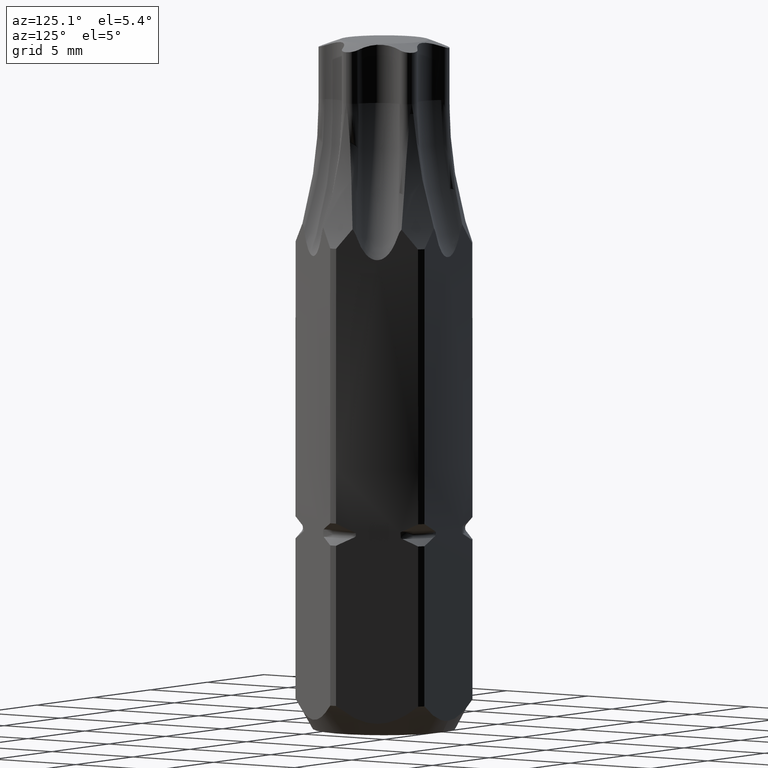
[diagram: clean part render]
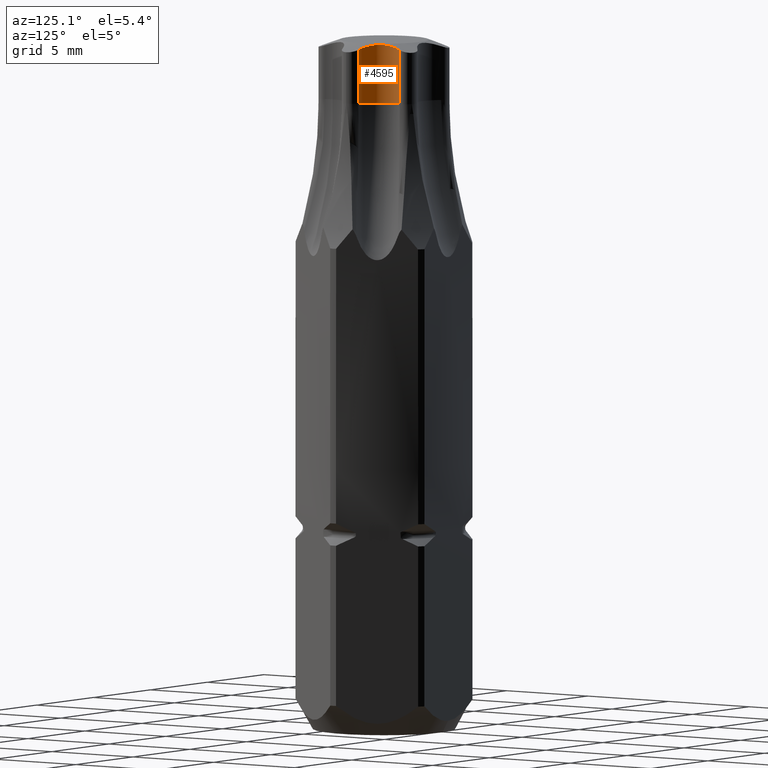
[diagram: same view with one face highlighted and labeled with its STEP entity id]
A machine part, auxiliary view. The second image highlights one B-rep face of the part: STEP entity #4595.
In plain terms, the highlighted cylindrical surface (edge-blend (fillet) strip) has radius 1.47 mm, axis along (0, 0, -1).
Its self-contained STEP definition (entity closure, byte-faithful):
#2579=DIRECTION('',(0.E0,0.E0,-1.E0));
#2580=VECTOR('',#2579,2.730601962634E0);
#2581=CARTESIAN_POINT('',(1.902547287539E0,2.302601828869E0,3.473060196263E1));
#2582=LINE('',#2581,#2580);
#2622=CARTESIAN_POINT('',(3.321207423513E0,1.9175E0,3.2E1));
#2623=DIRECTION('',(0.E0,0.E0,-1.E0));
#2624=DIRECTION('',(-2.556612932940E-1,-9.667664160030E-1,0.E0));
#2625=AXIS2_PLACEMENT_3D('',#2622,#2623,#2624);
#2686=CARTESIAN_POINT('',(2.945385322371E0,4.963533684756E-1,3.473060196263E1));
#2687=CARTESIAN_POINT('',(2.830801604491E0,5.266550225449E-1,3.476989442548E1));
#2688=CARTESIAN_POINT('',(2.614147495545E0,6.134940991285E-1,3.484160660030E1));
#2689=CARTESIAN_POINT('',(2.336924284507E0,8.090693275862E-1,3.491971703679E1));
#2690=CARTESIAN_POINT('',(2.119949651926E0,1.050449161239E0,3.495921769548E1));
#2691=CARTESIAN_POINT('',(1.962956715526E0,1.326473480975E0,3.495798141464E1));
#2692=CARTESIAN_POINT('',(1.867483416166E0,1.630574349866E0,3.491734600614E1));
#2693=CARTESIAN_POINT('',(1.838951646457E0,1.960231680545E0,3.484059962333E1));
#2694=CARTESIAN_POINT('',(1.871706653468E0,2.188989337716E0,3.476962966182E1));
#2695=CARTESIAN_POINT('',(1.902547287539E0,2.302601828869E0,3.473060196263E1));
#2700=DIRECTION('',(0.E0,0.E0,-1.E0));
#2701=VECTOR('',#2700,2.730601962634E0);
#2702=CARTESIAN_POINT('',(2.945385322371E0,4.963533684756E-1,3.473060196263E1));
#2703=LINE('',#2702,#2701);
#2889=CARTESIAN_POINT('',(2.945385322371E0,4.963533684756E-1,3.2E1));
#2890=CARTESIAN_POINT('',(1.902547287539E0,2.302601828869E0,3.2E1));
#2891=VERTEX_POINT('',#2889);
#2892=VERTEX_POINT('',#2890);
#2953=VERTEX_POINT('',#2686);
#2954=VERTEX_POINT('',#2695);
#4584=CARTESIAN_POINT('',(3.321207423513E0,1.9175E0,3.5E1));
#4585=DIRECTION('',(0.E0,0.E0,-1.E0));
#4586=DIRECTION('',(8.660254037844E-1,5.E-1,0.E0));
#4587=AXIS2_PLACEMENT_3D('',#4584,#4585,#4586);
#4588=CYLINDRICAL_SURFACE('',#4587,1.47E0);
#4589=ORIENTED_EDGE('',*,*,#4135,.T.);
#4590=ORIENTED_EDGE('',*,*,#4524,.T.);
#4591=ORIENTED_EDGE('',*,*,#4550,.F.);
#4592=ORIENTED_EDGE('',*,*,#4577,.F.);
#4593=EDGE_LOOP('',(#4589,#4590,#4591,#4592));
#4594=FACE_OUTER_BOUND('',#4593,.F.);
#4595=ADVANCED_FACE('',(#4594),#4588,.F.);
#2626=CIRCLE('',#2625,1.47E0);
#2696=B_SPLINE_CURVE_WITH_KNOTS('',3,(#2686,#2687,#2688,#2689,#2690,#2691,#2692,
#2693,#2694,#2695),.UNSPECIFIED.,.F.,.F.,(4,1,1,1,1,1,1,4),(0.E0,
1.428571428571E-1,2.857142857143E-1,4.285714285714E-1,5.714285714286E-1,
7.142857142857E-1,8.571428571429E-1,1.E0),.UNSPECIFIED.);
#4135=EDGE_CURVE('',#2953,#2954,#2696,.T.);
#4524=EDGE_CURVE('',#2954,#2892,#2582,.T.);
#4550=EDGE_CURVE('',#2891,#2892,#2626,.T.);
#4577=EDGE_CURVE('',#2953,#2891,#2703,.T.);